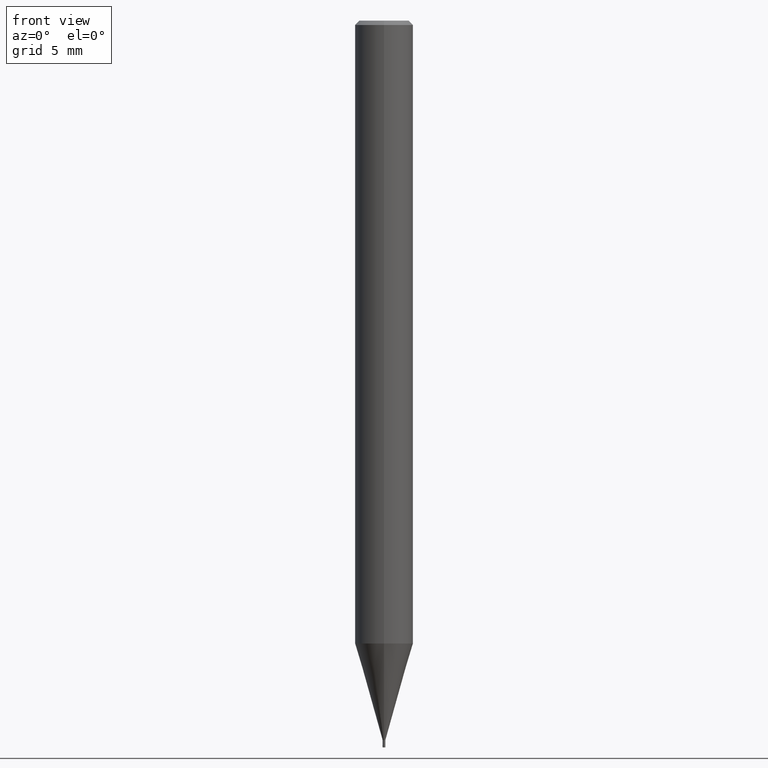
[diagram: clean part render]
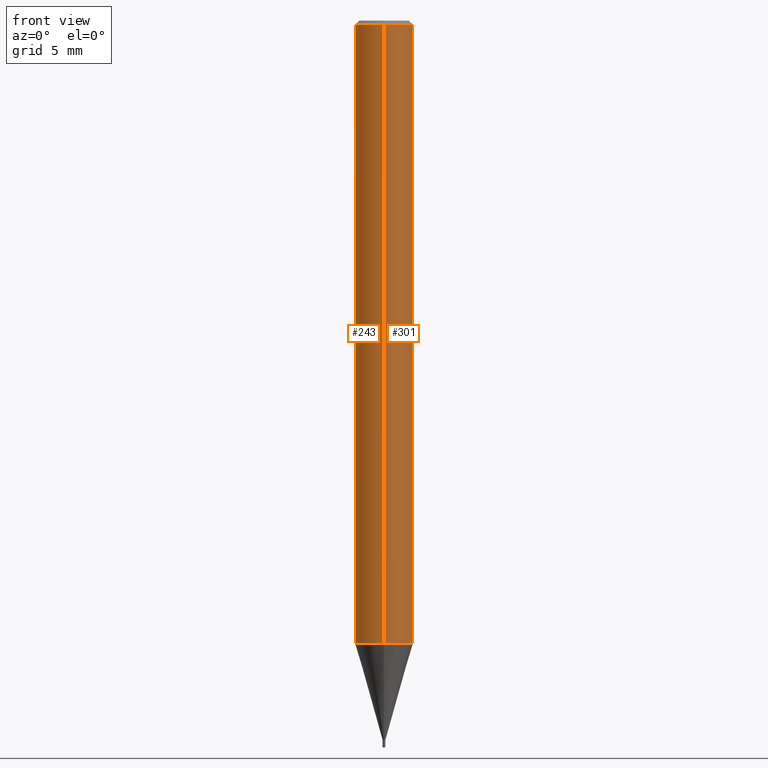
[diagram: same view with one multi-face feature highlighted, each face labeled with its STEP entity id]
A machine part, front view. The highlighted faces form ONE feature: a constant-radius fillet chain: 2 tangent blend faces with common blend radius 2 mm. The faces share edges in the B-rep.
Their STEP definitions:
[1] entity #301 (Cylinder):
#153=VERTEX_POINT('',#388);
#173=VERTEX_POINT('',#411);
#205=EDGE_CURVE('',#241,#153,#448,.T.);
#213=EDGE_CURVE('',#173,#275,#458,.T.);
#223=EDGE_CURVE('',#153,#173,#468,.T.);
#241=VERTEX_POINT('',#490);
#265=EDGE_CURVE('',#241,#275,#517,.T.);
#275=VERTEX_POINT('',#527);
#301=ADVANCED_FACE('',(#555),#556,.T.);
#388=CARTESIAN_POINT('',(0.0,2.0,-42.838));
#411=CARTESIAN_POINT('',(2.44921270764475E-016,-2.0,-42.838));
#448=LINE('',#722,#723);
#458=LINE('',#735,#736);
#468=CIRCLE('',#749,2.0);
#490=CARTESIAN_POINT('',(0.0,2.0,-0.289999999999999));
#517=CIRCLE('',#812,2.0);
#527=CARTESIAN_POINT('',(2.44921270764475E-016,-2.0,-0.289999999999999));
#555=FACE_OUTER_BOUND('',#865,.T.);
#556=CYLINDRICAL_SURFACE('',#866,2.0);
#722=CARTESIAN_POINT('',(-2.44921270764475E-016,2.0,-21.564));
#723=VECTOR('',#1023,1.0);
#735=CARTESIAN_POINT('',(2.44921270764475E-016,-2.0,-21.564));
#736=VECTOR('',#1035,1.0);
#749=AXIS2_PLACEMENT_3D('',#1041,#1042,#1043);
#812=AXIS2_PLACEMENT_3D('',#1117,#1118,#1119);
#865=EDGE_LOOP('',(#1157,#1158,#1159,#1160));
#866=AXIS2_PLACEMENT_3D('',#1161,#1162,#1163);
#1023=DIRECTION('',(0.0,0.0,-1.0));
#1035=DIRECTION('',(-0.0,-0.0,1.0));
#1041=CARTESIAN_POINT('',(0.0,0.0,-42.838));
#1042=DIRECTION('',(0.0,0.0,-1.0));
#1043=DIRECTION('',(0.0,1.0,0.0));
#1117=CARTESIAN_POINT('',(0.0,0.0,-0.289999999999999));
#1118=DIRECTION('',(0.0,0.0,-1.0));
#1119=DIRECTION('',(0.0,1.0,0.0));
#1157=ORIENTED_EDGE('',*,*,#205,.F.);
#1158=ORIENTED_EDGE('',*,*,#265,.T.);
#1159=ORIENTED_EDGE('',*,*,#213,.F.);
#1160=ORIENTED_EDGE('',*,*,#223,.F.);
#1161=CARTESIAN_POINT('',(0.0,0.0,-21.564));
#1162=DIRECTION('',(-0.0,-0.0,1.0));
#1163=DIRECTION('',(0.0,1.0,0.0));
[2] entity #243 (Cylinder):
#153=VERTEX_POINT('',#388);
#173=VERTEX_POINT('',#411);
#205=EDGE_CURVE('',#241,#153,#448,.T.);
#213=EDGE_CURVE('',#173,#275,#458,.T.);
#241=VERTEX_POINT('',#490);
#243=ADVANCED_FACE('',(#492),#493,.T.);
#261=EDGE_CURVE('',#173,#153,#512,.T.);
#275=VERTEX_POINT('',#527);
#285=EDGE_CURVE('',#275,#241,#537,.T.);
#388=CARTESIAN_POINT('',(0.0,2.0,-42.838));
#411=CARTESIAN_POINT('',(2.44921270764475E-016,-2.0,-42.838));
#448=LINE('',#722,#723);
#458=LINE('',#735,#736);
#490=CARTESIAN_POINT('',(0.0,2.0,-0.289999999999999));
#492=FACE_OUTER_BOUND('',#778,.T.);
#493=CYLINDRICAL_SURFACE('',#779,2.0);
#512=CIRCLE('',#806,2.0);
#527=CARTESIAN_POINT('',(2.44921270764475E-016,-2.0,-0.289999999999999));
#537=CIRCLE('',#840,2.0);
#722=CARTESIAN_POINT('',(-2.44921270764475E-016,2.0,-21.564));
#723=VECTOR('',#1023,1.0);
#735=CARTESIAN_POINT('',(2.44921270764475E-016,-2.0,-21.564));
#736=VECTOR('',#1035,1.0);
#778=EDGE_LOOP('',(#1085,#1086,#1087,#1088));
#779=AXIS2_PLACEMENT_3D('',#1089,#1090,#1091);
#806=AXIS2_PLACEMENT_3D('',#1106,#1107,#1108);
#840=AXIS2_PLACEMENT_3D('',#1131,#1132,#1133);
#1023=DIRECTION('',(0.0,0.0,-1.0));
#1035=DIRECTION('',(-0.0,-0.0,1.0));
#1085=ORIENTED_EDGE('',*,*,#205,.T.);
#1086=ORIENTED_EDGE('',*,*,#261,.F.);
#1087=ORIENTED_EDGE('',*,*,#213,.T.);
#1088=ORIENTED_EDGE('',*,*,#285,.T.);
#1089=CARTESIAN_POINT('',(0.0,0.0,-21.564));
#1090=DIRECTION('',(-0.0,-0.0,1.0));
#1091=DIRECTION('',(0.0,1.0,0.0));
#1106=CARTESIAN_POINT('',(0.0,0.0,-42.838));
#1107=DIRECTION('',(0.0,0.0,-1.0));
#1108=DIRECTION('',(0.0,1.0,0.0));
#1131=CARTESIAN_POINT('',(0.0,0.0,-0.289999999999999));
#1132=DIRECTION('',(0.0,0.0,-1.0));
#1133=DIRECTION('',(0.0,1.0,0.0));